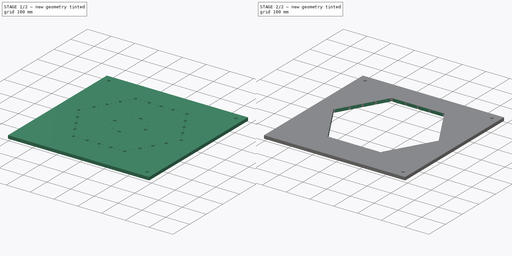
[diagram: build sequence overview — one tinted view per stage of 2, left to right]
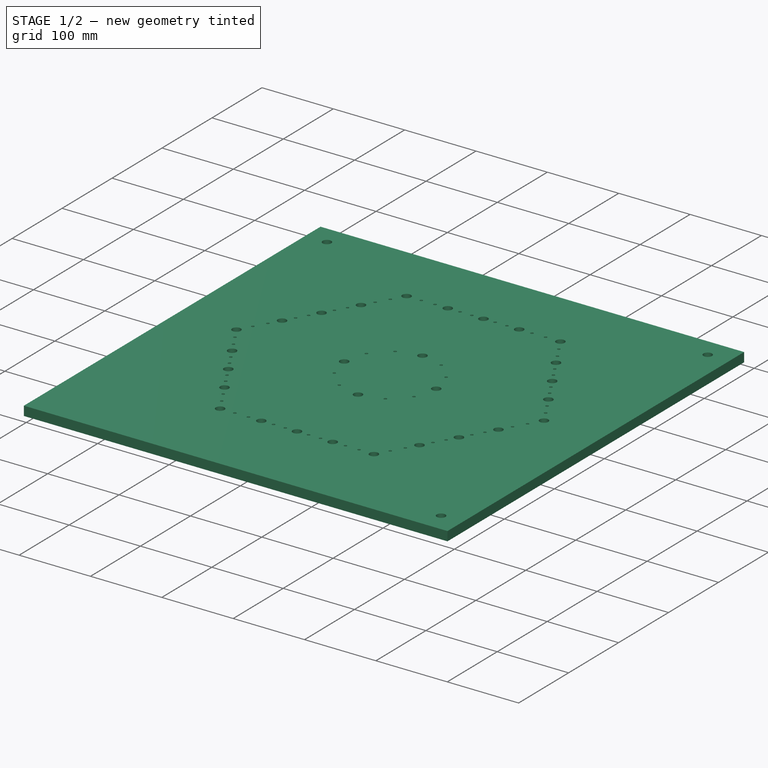
[diagram: stage 1 of 2 — iso view after this stage's code; geometry added in this stage tinted green]
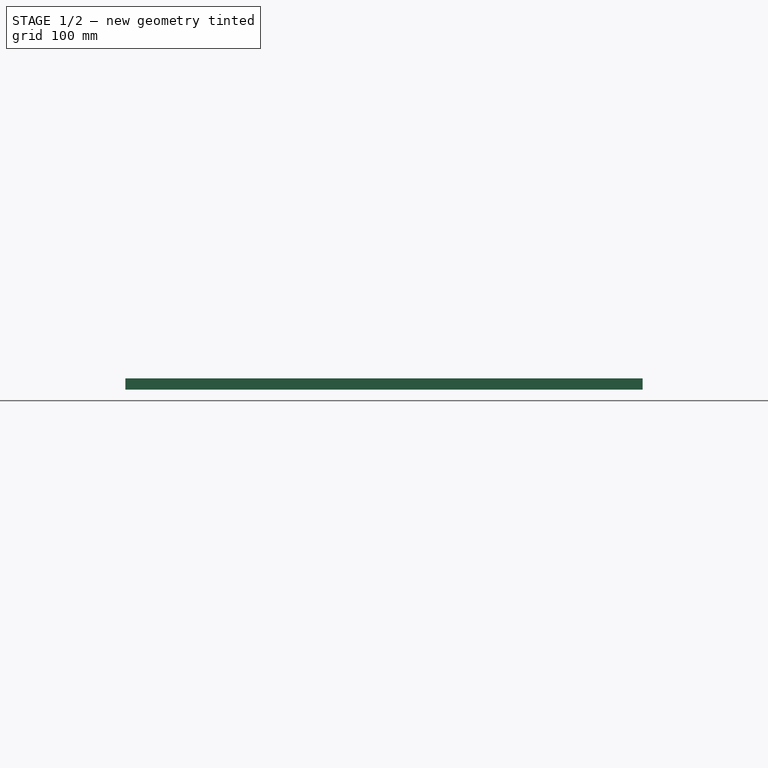
[diagram: stage 1 of 2 — front view after this stage's code; geometry added in this stage tinted green]
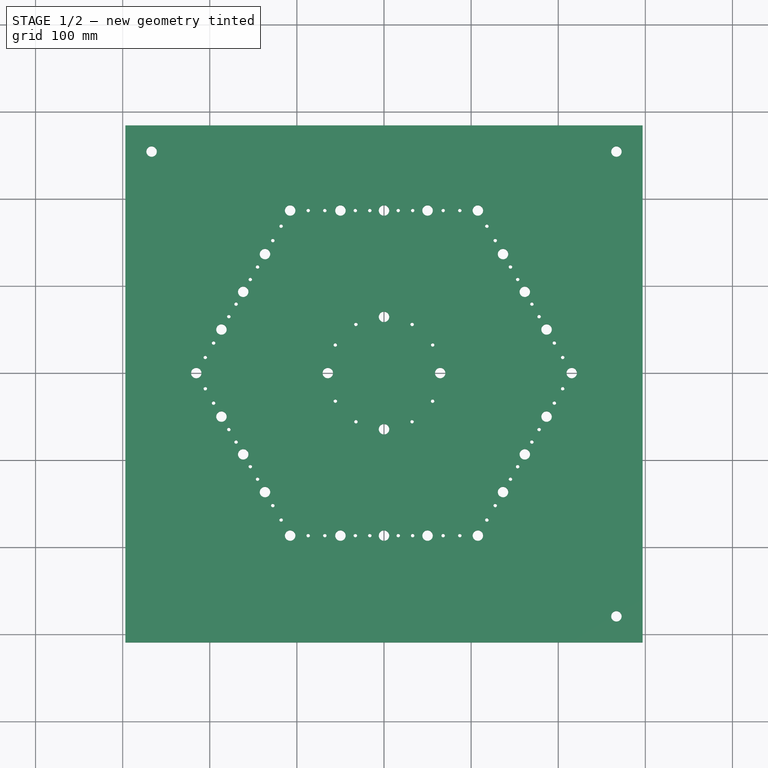
[diagram: stage 1 of 2 — top view after this stage's code; geometry added in this stage tinted green]
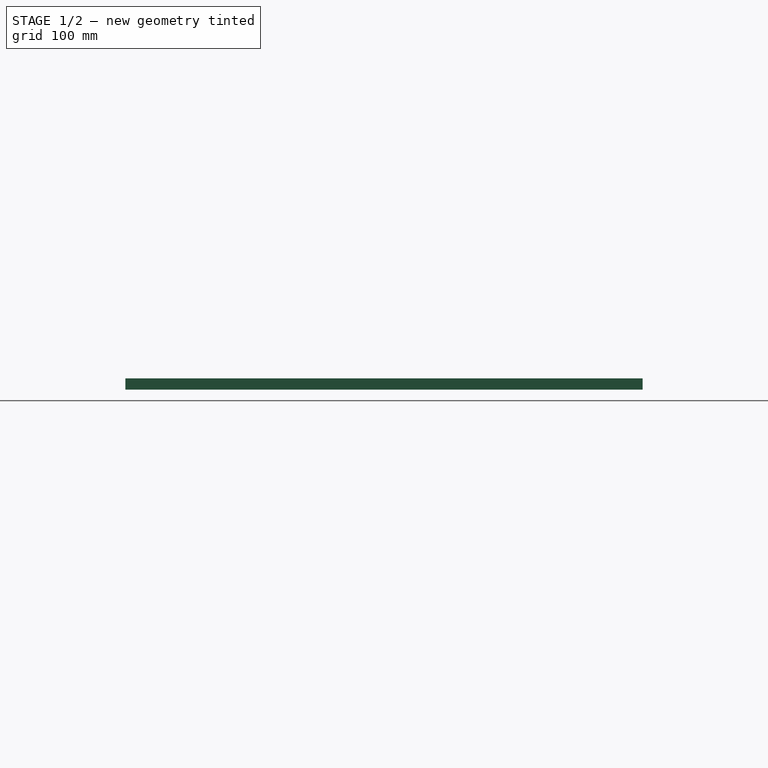
[diagram: stage 1 of 2 — right view after this stage's code; geometry added in this stage tinted green]
FCSTD DOCUMENT  (FreeCAD 0.20R29177 (Git))
Label: Stator_Mold_Surround_Hexagonal
License: All rights reserved
LicenseURL: http://en.wikipedia.org/wiki/All_rights_reserved
objects: Spreadsheet::Sheet×1, PartDesign::Plane×1, PartDesign::SubShapeBinder×1, PartDesign::FeatureBase×1, Sketcher::SketchObject×1, PartDesign::Pocket×1, PartDesign::Body×1
note: 7 computed .brp shape members not serialized (recipe doc carries the construction recipe); baked Part::Feature solids carry a one-line shape summary decoded from their .brp
EXTERNAL_REF file=../../../Master_of_Puppets.FCStd obj=Alternator
EXTERNAL_REF file=../../../Master_of_Puppets.FCStd obj=Spreadsheet
EXTERNAL_REF file=Stator_Mold_BoltShaftLayer_Hexagonal.FCStd obj=Body

FEATURE [Spreadsheet::Sheet] Spreadsheet
  cells = A1=Inputs; A2=StatorThickness; B2=HexagonalStatorOuterCircumradius; A3(StatorThickness)==Master_of_Puppets#Spreadsheet.StatorThickness; B3(HexagonalStatorOuterCircumradius)==Master_of_Puppets#Alternator.HexagonalStatorOuterCircumradius
FEATURE [PartDesign::Plane] DatumPlane001  label="DatumPlane"
  AttachmentOffset = pos=(0,0,13) rot=(0,0,1;0rad)
  Length = 60
  MapMode = 5
  Placement = pos=(0,0,13) rot=(0,0,1;0rad)
  ResizeMode = 0
  Support = -> [XY_Plane]
  Width = 60
  expr: .AttachmentOffset.Base.z = Spreadsheet.StatorThickness
FEATURE [PartDesign::SubShapeBinder] Binder001  label="Binder"
  BindCopyOnChange = 0
  BindMode = 0
  ClaimChildren = true
  Context = -> Body [Binder001.]
  Fuse = false
  MakeFace = true
  OffsetFill = false
  OffsetIntersection = false
  OffsetJoinType = 0
  OffsetOpenResult = false
  PartialLoad = false
  Refine = true
  Relative = true
  Support = -> [<external Stator_Mold_BoltShaftLayer_Hexagonal.FCStd>#Body]
  _Version = 2
FEATURE [PartDesign::FeatureBase] BaseFeature
  BaseFeature = -> Binder001
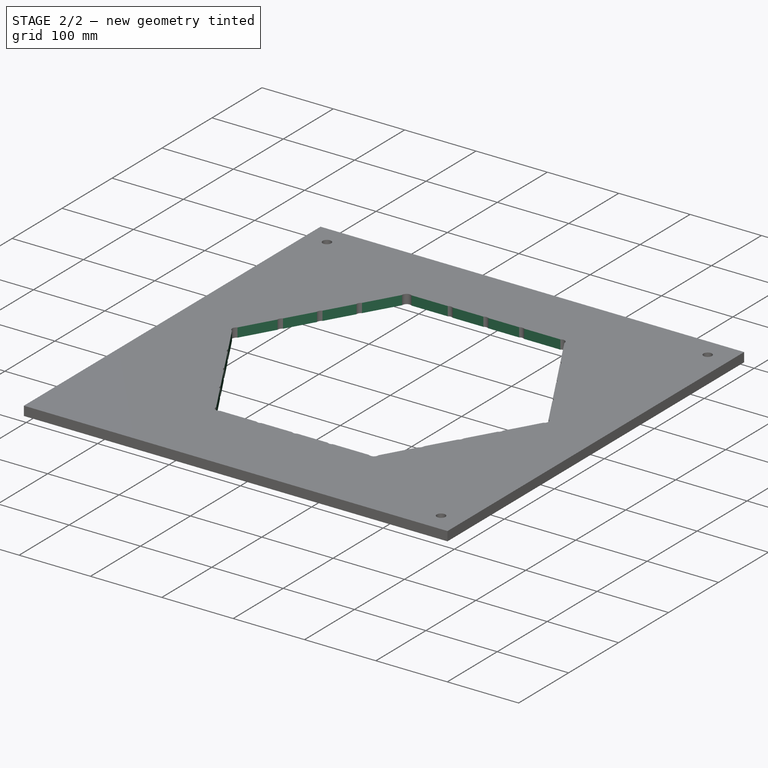
[diagram: stage 2 of 2 — iso view after this stage's code; geometry added in this stage tinted green]
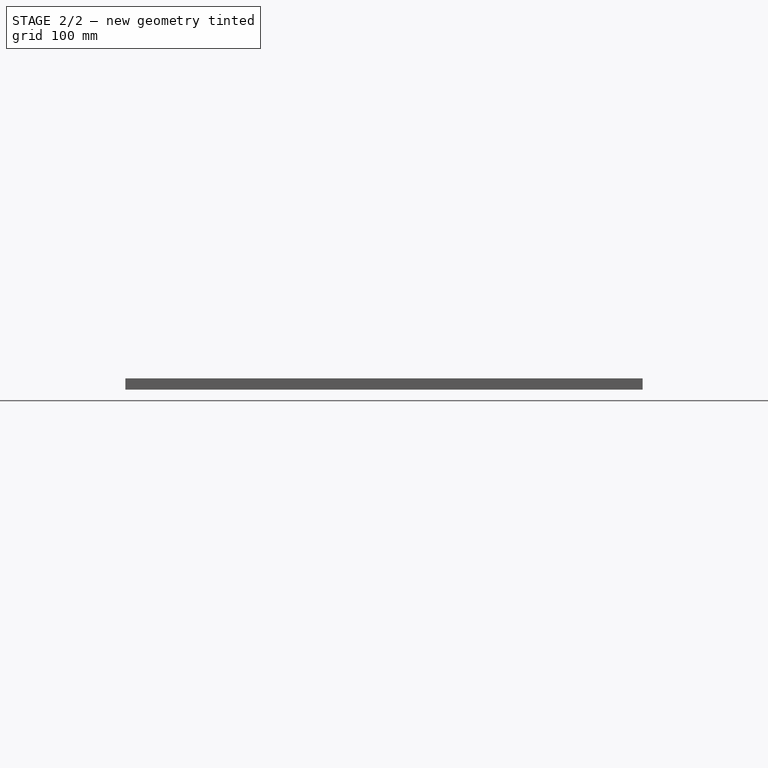
[diagram: stage 2 of 2 — front view after this stage's code; geometry added in this stage tinted green]
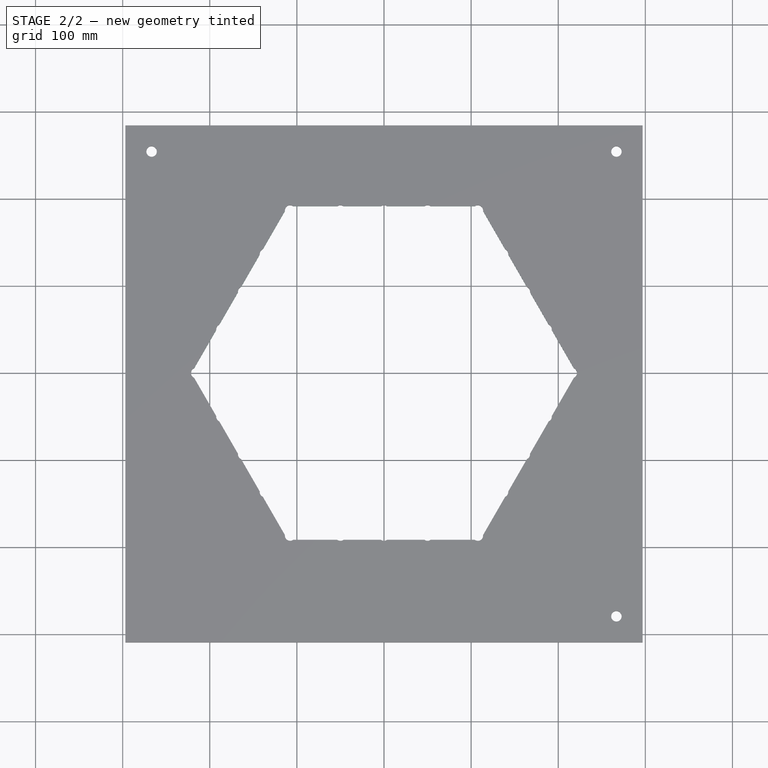
[diagram: stage 2 of 2 — top view after this stage's code; geometry added in this stage tinted green]
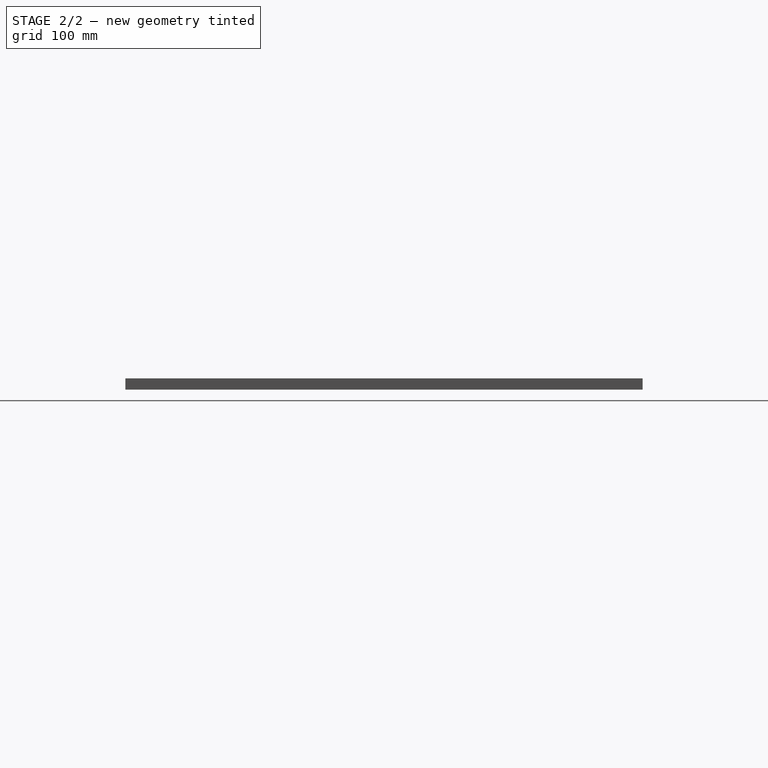
[diagram: stage 2 of 2 — right view after this stage's code; geometry added in this stage tinted green]
FEATURE [Sketcher::SketchObject] Sketch
  FullyConstrained = true
  MapMode = 5
  Placement = pos=(0,0,13) rot=(0,0,1;0rad)
  Support = -> [DatumPlane001]
  expr: Constraints[17] = Spreadsheet.HexagonalStatorOuterCircumradius
  sketch-geometry (7):
    g0: LineSegment StartX=110.563 StartY=191.5 StartZ=0 EndX=-110.563 EndY=191.5 EndZ=0
    g1: LineSegment StartX=-110.563 StartY=191.5 StartZ=0 EndX=-221.125 EndY=0 EndZ=0
    g2: LineSegment StartX=-221.125 StartY=0 StartZ=0 EndX=-110.563 EndY=-191.5 EndZ=0
    g3: LineSegment StartX=-110.563 StartY=-191.5 StartZ=0 EndX=110.563 EndY=-191.5 EndZ=0
    g4: LineSegment StartX=110.563 StartY=-191.5 StartZ=0 EndX=221.125 EndY=0 EndZ=0
    g5: LineSegment StartX=221.125 StartY=0 StartZ=0 EndX=110.563 EndY=191.5 EndZ=0
    g6: Circle CenterX=0 CenterY=0 CenterZ=0 NormalX=0 NormalY=0 NormalZ=1 AngleXU=0 Radius=221.125
  constraints (16):
    c: Coincident(g0,g1)
    c: Coincident(g1,g2)
    c: Coincident(g2,g3)
    c: Coincident(g3,g4)
    c: Coincident(g4,g5)
    c: Coincident(g5,g0)
    c: Equal(g0, g1-g5) x5
    c: PointOnObject(g0,g6)
    c: PointOnObject(g1,g6)
    c: PointOnObject(g2,g6)
    c: PointOnObject(g3,g6)
    c: PointOnObject(g4,g6)
    c: PointOnObject(g5,g6)
    c: Radius(g6) = 221.125
    c: Horizontal(g1,g4)
    c: Coincident(g6,g-1)
FEATURE [PartDesign::Pocket] Pocket
  BaseFeature = -> BaseFeature
  Direction = (0,0,-1)
  Length = 5
  Length2 = 100
  Profile = -> Sketch
  Type = 1
FEATURE [PartDesign::Body] Body  label="Stator_Mold_Surround"
  BaseFeature = -> Binder001
  Group = -> [BaseFeature,DatumPlane001,Binder001,Sketch,Pocket]
  Openafpm_Flat = true
  Origin = -> Origin
  Tip = -> Pocket
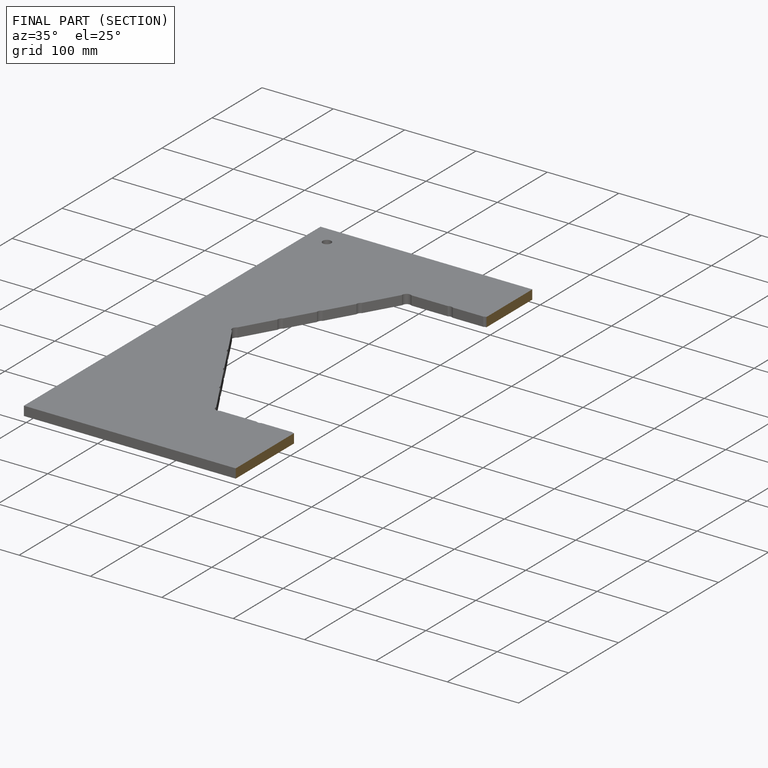
[diagram: finished part — half-section view (interior)]
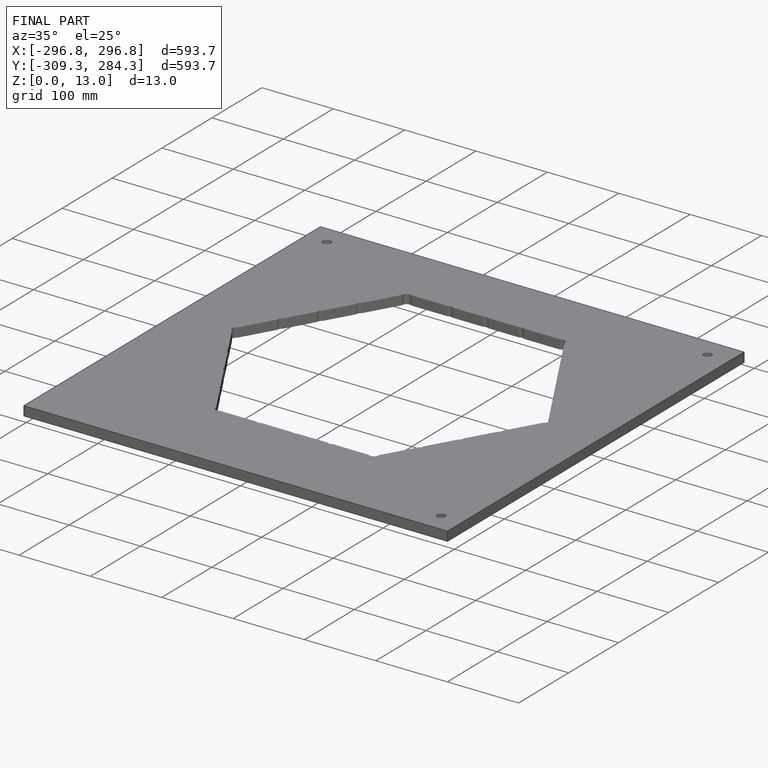
[diagram: finished part — iso view with bounding-box wireframe]
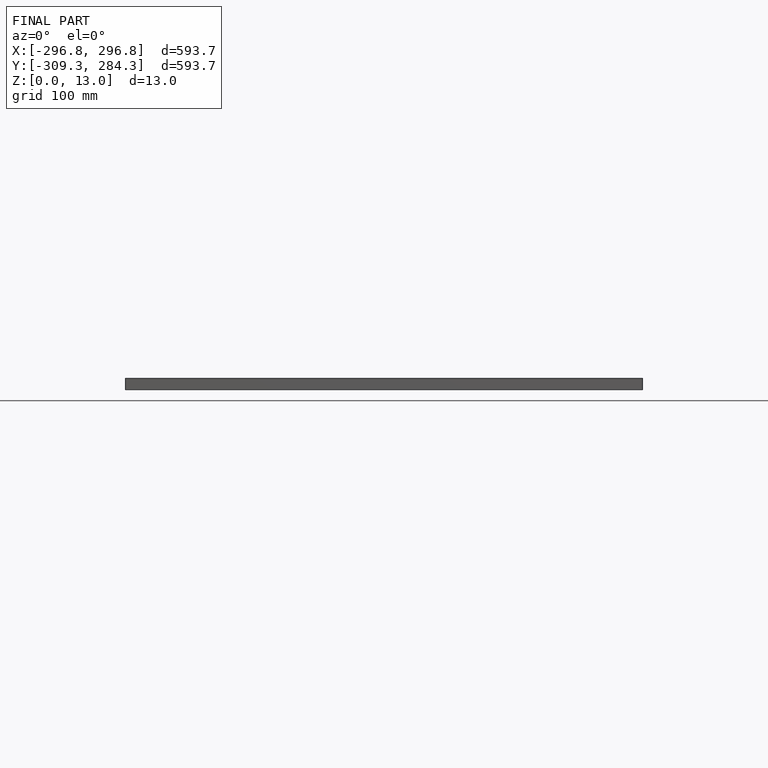
[diagram: finished part — front view with bounding-box wireframe]
